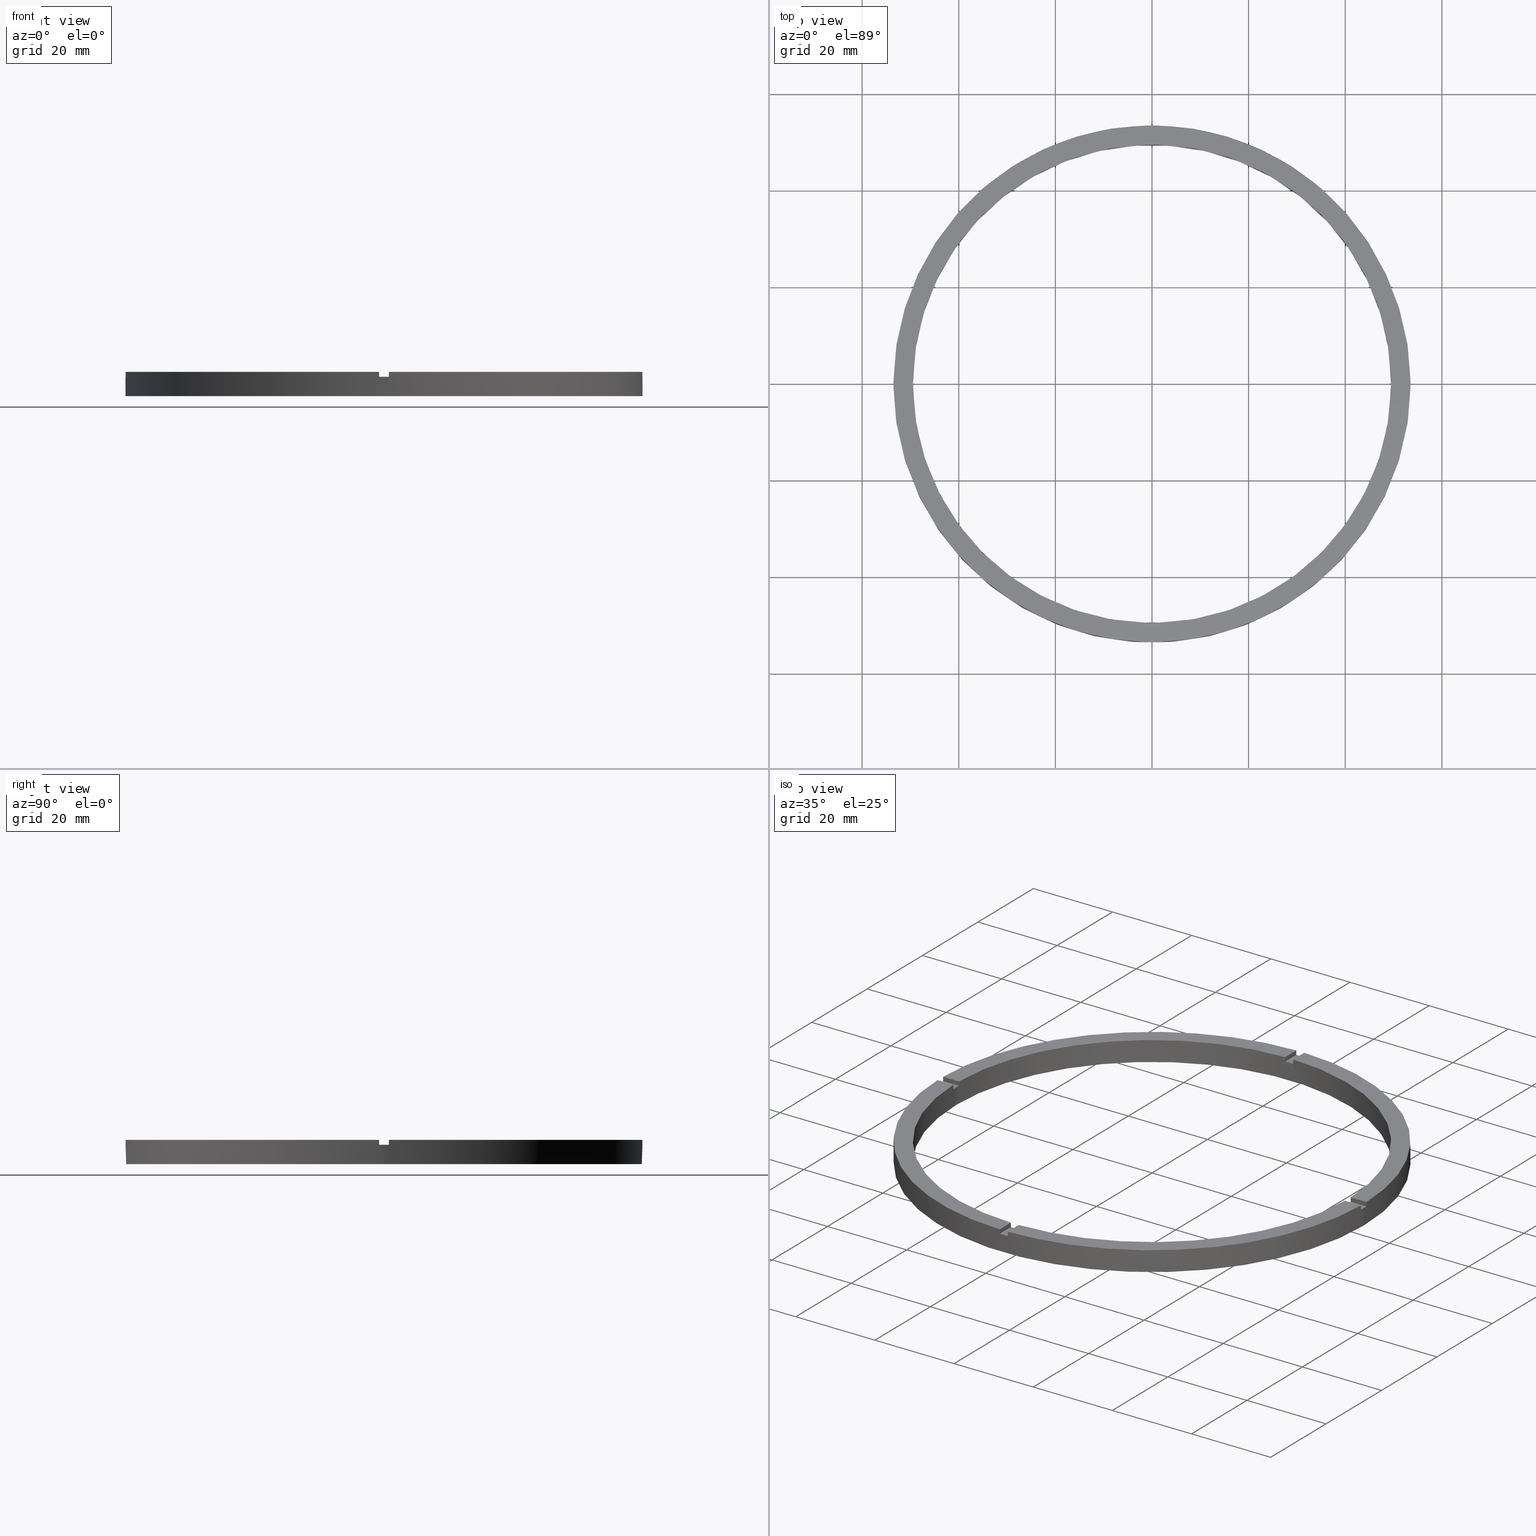
[diagram: canonical four-view strip — front | top / right | iso, engineering-drawing reading convention]
A machine part, canonical four-view strip (front | top / right | iso — engineering-drawing reading convention). The complete STEP part file that produces these views, byte-faithful:
ISO-10303-21;
HEADER;
FILE_DESCRIPTION (( 'STEP AP203' ),
    '1' );
FILE_NAME ('514218.step',
    '2024-12-26T02:49:11',
    ( 'MSI' ),
    ( '' ),
    'SwSTEP 2.0',
    'SolidWorks 2020',
    '' );
FILE_SCHEMA (( 'CONFIG_CONTROL_DESIGN' ));
ENDSEC;

DATA;
#1 = PLANE ( 'NONE',  #80 ) ;
#2 = AXIS2_PLACEMENT_3D ( 'NONE', #96, #578, #4 ) ;
#3 = PLANE ( 'NONE',  #149 ) ;
#4 = DIRECTION ( 'NONE',  ( 1.000000000000000000, 0.000000000000000000, -0.000000000000000000 ) ) ;
#5 = CARTESIAN_POINT ( 'NONE',  ( 0.000000000000000000, 0.000000000000000000, 5.000000000000000000 ) ) ;
#6 = DIRECTION ( 'NONE',  ( -1.000000000000000000, 0.000000000000000000, 0.000000000000000000 ) ) ;
#7 = AXIS2_PLACEMENT_3D ( 'NONE', #547, #768, #266 ) ;
#8 = CARTESIAN_POINT ( 'NONE',  ( 49.48989795907849043, 0.9999999999998452349, 5.000000000000000000 ) ) ;
#9 = ADVANCED_FACE ( 'NONE', ( #86 ), #779, .F. ) ;
#10 = DIRECTION ( 'NONE',  ( 1.000000000000000000, 0.000000000000000000, 0.000000000000000000 ) ) ;
#11 = CARTESIAN_POINT ( 'NONE',  ( -49.48989795907849043, -1.000000000000031974, 4.000000000000000000 ) ) ;
#12 = ADVANCED_FACE ( 'NONE', ( #93 ), #748, .T. ) ;
#13 = CARTESIAN_POINT ( 'NONE',  ( -1.000000000000155875, -53.49065338916696533, 5.000000000000000000 ) ) ;
#14 = AXIS2_PLACEMENT_3D ( 'NONE', #344, #509, #118 ) ;
#15 = CARTESIAN_POINT ( 'NONE',  ( -1.000000000000027311, 53.49065338916696533, 4.000000000000000000 ) ) ;
#16 = APPROVAL_ROLE ( '' ) ;
#17 = DIRECTION ( 'NONE',  ( 0.000000000000000000, 0.000000000000000000, 1.000000000000000000 ) ) ;
#18 = DIRECTION ( 'NONE',  ( 1.000000000000000000, 0.000000000000000000, 0.000000000000000000 ) ) ;
#19 = DIRECTION ( 'NONE',  ( -1.000000000000000000, -6.505213034913025371E-17, -0.000000000000000000 ) ) ;
#20 = CC_DESIGN_APPROVAL ( #723, ( #652 ) ) ;
#21 = DIRECTION ( 'NONE',  ( 1.000000000000000000, 0.000000000000000000, -0.000000000000000000 ) ) ;
#22 = EDGE_CURVE ( 'NONE', #754, #426, #338, .T. ) ;
#23 = EDGE_CURVE ( 'NONE', #132, #233, #332, .T. ) ;
#24 = AXIS2_PLACEMENT_3D ( 'NONE', #364, #6, #428 ) ;
#25 =( NAMED_UNIT ( * ) PLANE_ANGLE_UNIT ( ) SI_UNIT ( $, .RADIAN. ) );
#26 = EDGE_CURVE ( 'NONE', #471, #236, #337, .T. ) ;
#27 = CARTESIAN_POINT ( 'NONE',  ( 0.9999999999998436806, -49.48989795907849043, 5.000000000000000000 ) ) ;
#28 = DIRECTION ( 'NONE',  ( 1.000000000000000000, 0.000000000000000000, 0.000000000000000000 ) ) ;
#29 = DATE_AND_TIME ( #574, #51 ) ;
#30 = AXIS2_PLACEMENT_3D ( 'NONE', #5, #204, #210 ) ;
#31 = PERSON_AND_ORGANIZATION ( #371, #427 ) ;
#32 = APPROVAL_DATE_TIME ( #556, #759 ) ;
#33 = PERSON_AND_ORGANIZATION ( #371, #427 ) ;
#34 = PLANE ( 'NONE',  #359 ) ;
#35 = CARTESIAN_POINT ( 'NONE',  ( 0.9999999999998427924, -43.50000000000017764, 4.000000000000000000 ) ) ;
#36 = APPROVAL_PERSON_ORGANIZATION ( #551, #723, #16 ) ;
#37 = EDGE_CURVE ( 'NONE', #699, #233, #94, .T. ) ;
#38 = CALENDAR_DATE ( 2024, 26, 12 ) ;
#39 = CARTESIAN_POINT ( 'NONE',  ( 49.48989795907849043, 0.9999999999998452349, 4.000000000000000000 ) ) ;
#40 = ORIENTED_EDGE ( 'NONE', *, *, #584, .T. ) ;
#41 = ADVANCED_FACE ( 'NONE', ( #596 ), #57, .T. ) ;
#42 = CARTESIAN_POINT ( 'NONE',  ( 43.49999999999999289, 0.9999999999998447908, 4.000000000000000000 ) ) ;
#43 = CALENDAR_DATE ( 2024, 26, 12 ) ;
#44 = DIRECTION ( 'NONE',  ( 1.000000000000000000, 0.000000000000000000, 0.000000000000000000 ) ) ;
#45 = COORDINATED_UNIVERSAL_TIME_OFFSET ( 8, 0, .AHEAD. ) ;
#46 = CARTESIAN_POINT ( 'NONE',  ( -53.49065338916696533, 0.9999999999999674705, 4.000000000000000000 ) ) ;
#47 = CARTESIAN_POINT ( 'NONE',  ( 0.000000000000000000, 0.000000000000000000, 0.000000000000000000 ) ) ;
#48 = ORIENTED_EDGE ( 'NONE', *, *, #307, .T. ) ;
#49 = LOCAL_TIME ( 10, 49, 11.00000000000000000, #301 ) ;
#50 = CARTESIAN_POINT ( 'NONE',  ( 0.000000000000000000, 0.000000000000000000, 4.000000000000000000 ) ) ;
#51 = LOCAL_TIME ( 10, 49, 11.00000000000000000, #409 ) ;
#52 = EDGE_CURVE ( 'NONE', #361, #435, #351, .T. ) ;
#53 = CARTESIAN_POINT ( 'NONE',  ( 43.49999999999999289, 0.9999999999998447908, 5.000000000000000000 ) ) ;
#54 = PERSON_AND_ORGANIZATION ( #371, #427 ) ;
#55 = DIRECTION ( 'NONE',  ( 0.000000000000000000, 0.000000000000000000, 1.000000000000000000 ) ) ;
#56 = PRODUCT_DEFINITION_SHAPE ( 'NONE', 'NONE',  #535 ) ;
#57 = PLANE ( 'NONE',  #293 ) ;
#58 = CARTESIAN_POINT ( 'NONE',  ( 43.49999999999999289, 0.9999999999998447908, 4.000000000000000000 ) ) ;
#59 = EDGE_CURVE ( 'NONE', #361, #664, #79, .T. ) ;
#60 = DIRECTION ( 'NONE',  ( -0.000000000000000000, -1.000000000000000000, -0.000000000000000000 ) ) ;
#61 = CARTESIAN_POINT ( 'NONE',  ( 0.9999999999999726885, 43.50000000000000000, 4.000000000000000000 ) ) ;
#62 = EDGE_CURVE ( 'NONE', #467, #426, #91, .T. ) ;
#63 = DIRECTION ( 'NONE',  ( -1.000000000000000000, 0.000000000000000000, 0.000000000000000000 ) ) ;
#64 = CARTESIAN_POINT ( 'NONE',  ( 49.50000000000000711, 6.062001655779399300E-15, 4.000000000000000000 ) ) ;
#65 = PLANE ( 'NONE',  #557 ) ;
#66 = AXIS2_PLACEMENT_3D ( 'NONE', #770, #501, #263 ) ;
#67 = DIRECTION ( 'NONE',  ( -6.505213034913025371E-17, 1.000000000000000000, 0.000000000000000000 ) ) ;
#68 = DESIGN_CONTEXT ( 'detailed design', #623, 'design' ) ;
#69 = APPLICATION_CONTEXT ( 'configuration controlled 3d designs of mechanical parts and assemblies' ) ;
#70 = APPROVAL_ROLE ( '' ) ;
#71 = VECTOR ( 'NONE', #320, 1000.000000000000000 ) ;
#72 = LINE ( 'NONE', #639, #607 ) ;
#73 = AXIS2_PLACEMENT_3D ( 'NONE', #543, #761, #767 ) ;
#74 = FACE_OUTER_BOUND ( 'NONE', #162, .T. ) ;
#75 = CARTESIAN_POINT ( 'NONE',  ( -53.50000000000000000, 0.000000000000000000, 5.000000000000000000 ) ) ;
#76 = FACE_OUTER_BOUND ( 'NONE', #168, .T. ) ;
#77 = LINE ( 'NONE', #460, #603 ) ;
#78 = EDGE_LOOP ( 'NONE', ( #164, #410, #140, #735, #465, #755, #174, #472, #219, #694, #455, #750 ) ) ;
#79 = CIRCLE ( 'NONE', #486, 49.50000000000000711 ) ;
#80 = AXIS2_PLACEMENT_3D ( 'NONE', #496, #269, #531 ) ;
#81 = CARTESIAN_POINT ( 'NONE',  ( -49.48989795907849043, 0.9999999999999681366, 4.000000000000000000 ) ) ;
#82 = VECTOR ( 'NONE', #342, 1000.000000000000000 ) ;
#83 = CIRCLE ( 'NONE', #368, 53.50000000000000000 ) ;
#84 = CC_DESIGN_DATE_AND_TIME_ASSIGNMENT ( #569, #319, ( #652 ) ) ;
#85 = LINE ( 'NONE', #513, #333 ) ;
#86 = FACE_OUTER_BOUND ( 'NONE', #202, .T. ) ;
#87 = EDGE_CURVE ( 'NONE', #200, #754, #625, .T. ) ;
#88 = CIRCLE ( 'NONE', #242, 53.50000000000000000 ) ;
#89 = FACE_OUTER_BOUND ( 'NONE', #485, .T. ) ;
#90 = EDGE_CURVE ( 'NONE', #177, #715, #616, .T. ) ;
#91 = CIRCLE ( 'NONE', #420, 49.50000000000000711 ) ;
#92 = AXIS2_PLACEMENT_3D ( 'NONE', #577, #645, #739 ) ;
#93 = FACE_OUTER_BOUND ( 'NONE', #711, .T. ) ;
#94 = LINE ( 'NONE', #350, #590 ) ;
#95 = LINE ( 'NONE', #681, #101 ) ;
#96 = CARTESIAN_POINT ( 'NONE',  ( 0.000000000000000000, 0.000000000000000000, 5.000000000000000000 ) ) ;
#97 = LINE ( 'NONE', #27, #71 ) ;
#98 = VECTOR ( 'NONE', #326, 1000.000000000000000 ) ;
#99 = LINE ( 'NONE', #245, #612 ) ;
#100 = CARTESIAN_POINT ( 'NONE',  ( 0.000000000000000000, 0.000000000000000000, 5.000000000000000000 ) ) ;
#101 = VECTOR ( 'NONE', #605, 1000.000000000000000 ) ;
#102 = CIRCLE ( 'NONE', #431, 49.50000000000000711 ) ;
#103 = LINE ( 'NONE', #42, #642 ) ;
#104 = VECTOR ( 'NONE', #567, 1000.000000000000000 ) ;
#105 = DIRECTION ( 'NONE',  ( -0.000000000000000000, -0.000000000000000000, -1.000000000000000000 ) ) ;
#106 =( GEOMETRIC_REPRESENTATION_CONTEXT ( 3 ) GLOBAL_UNCERTAINTY_ASSIGNED_CONTEXT ( ( #688 ) ) GLOBAL_UNIT_ASSIGNED_CONTEXT ( ( #231, #25, #703 ) ) REPRESENTATION_CONTEXT ( 'NONE', 'WORKASPACE' ) );
#107 = FACE_OUTER_BOUND ( 'NONE', #176, .T. ) ;
#108 = DIRECTION ( 'NONE',  ( 0.000000000000000000, 0.000000000000000000, 1.000000000000000000 ) ) ;
#109 = CIRCLE ( 'NONE', #66, 49.50000000000000711 ) ;
#110 = CARTESIAN_POINT ( 'NONE',  ( 53.49065338916696533, -1.000000000000154543, 5.000000000000000000 ) ) ;
#111 = LINE ( 'NONE', #279, #658 ) ;
#112 = CARTESIAN_POINT ( 'NONE',  ( -1.000000000000157208, -43.50000000000017764, 4.000000000000000000 ) ) ;
#113 = VECTOR ( 'NONE', #19, 1000.000000000000000 ) ;
#114 = DIRECTION ( 'NONE',  ( 1.000000000000000000, 0.000000000000000000, 0.000000000000000000 ) ) ;
#115 = LINE ( 'NONE', #537, #395 ) ;
#116 = CC_DESIGN_SECURITY_CLASSIFICATION ( #652, ( #268 ) ) ;
#117 = LINE ( 'NONE', #521, #124 ) ;
#118 = DIRECTION ( 'NONE',  ( 1.000000000000000000, 0.000000000000000000, 0.000000000000000000 ) ) ;
#119 = CIRCLE ( 'NONE', #579, 53.50000000000000000 ) ;
#120 = AXIS2_PLACEMENT_3D ( 'NONE', #195, #674, #10 ) ;
#121 = CC_DESIGN_DATE_AND_TIME_ASSIGNMENT ( #308, #272, ( #535 ) ) ;
#122 = EDGE_CURVE ( 'NONE', #239, #177, #343, .T. ) ;
#123 = FACE_OUTER_BOUND ( 'NONE', #772, .T. ) ;
#124 = VECTOR ( 'NONE', #528, 1000.000000000000000 ) ;
#125 = CIRCLE ( 'NONE', #545, 53.50000000000000000 ) ;
#126 = EDGE_CURVE ( 'NONE', #166, #177, #335, .T. ) ;
#127 = VECTOR ( 'NONE', #742, 1000.000000000000000 ) ;
#128 = AXIS2_PLACEMENT_3D ( 'NONE', #47, #581, #656 ) ;
#129 = VECTOR ( 'NONE', #134, 1000.000000000000000 ) ;
#130 = ORIENTED_EDGE ( 'NONE', *, *, #225, .F. ) ;
#131 = CARTESIAN_POINT ( 'NONE',  ( 0.000000000000000000, 0.000000000000000000, 4.000000000000000000 ) ) ;
#132 = VERTEX_POINT ( 'NONE', #64 ) ;
#133 = CIRCLE ( 'NONE', #443, 53.50000000000000000 ) ;
#134 = DIRECTION ( 'NONE',  ( 1.000000000000000000, 1.951563910473907735E-16, -0.000000000000000000 ) ) ;
#135 = ORIENTED_EDGE ( 'NONE', *, *, #22, .T. ) ;
#136 = CIRCLE ( 'NONE', #128, 53.50000000000000000 ) ;
#137 = EDGE_CURVE ( 'NONE', #462, #689, #347, .T. ) ;
#138 = VERTEX_POINT ( 'NONE', #261 ) ;
#139 = VECTOR ( 'NONE', #516, 1000.000000000000000 ) ;
#140 = ORIENTED_EDGE ( 'NONE', *, *, #440, .T. ) ;
#141 = FACE_OUTER_BOUND ( 'NONE', #156, .T. ) ;
#142 = CARTESIAN_POINT ( 'NONE',  ( 0.000000000000000000, 0.000000000000000000, 5.000000000000000000 ) ) ;
#143 = ORIENTED_EDGE ( 'NONE', *, *, #62, .T. ) ;
#144 = FACE_OUTER_BOUND ( 'NONE', #78, .T. ) ;
#145 = CARTESIAN_POINT ( 'NONE',  ( -1.000000000000027311, 53.49065338916696533, 5.000000000000000000 ) ) ;
#146 = ORIENTED_EDGE ( 'NONE', *, *, #621, .T. ) ;
#147 = SECURITY_CLASSIFICATION_LEVEL ( 'unclassified' ) ;
#148 = APPROVAL_PERSON_ORGANIZATION ( #161, #541, #228 ) ;
#149 = AXIS2_PLACEMENT_3D ( 'NONE', #112, #303, #286 ) ;
#150 = ORIENTED_EDGE ( 'NONE', *, *, #684, .F. ) ;
#151 = VECTOR ( 'NONE', #773, 1000.000000000000000 ) ;
#152 = ORIENTED_EDGE ( 'NONE', *, *, #584, .F. ) ;
#153 = ORIENTED_EDGE ( 'NONE', *, *, #225, .T. ) ;
#154 = VERTEX_POINT ( 'NONE', #682 ) ;
#155 = DIRECTION ( 'NONE',  ( 0.000000000000000000, 0.000000000000000000, 1.000000000000000000 ) ) ;
#156 = EDGE_LOOP ( 'NONE', ( #714, #188, #741, #659 ) ) ;
#157 = ORIENTED_EDGE ( 'NONE', *, *, #126, .F. ) ;
#158 = DIRECTION ( 'NONE',  ( 1.000000000000000000, 0.000000000000000000, 0.000000000000000000 ) ) ;
#159 = ORIENTED_EDGE ( 'NONE', *, *, #62, .F. ) ;
#160 = ORIENTED_EDGE ( 'NONE', *, *, #631, .F. ) ;
#161 = PERSON_AND_ORGANIZATION ( #371, #427 ) ;
#162 = EDGE_LOOP ( 'NONE', ( #722, #679, #489, #701, #721, #403 ) ) ;
#163 = DIRECTION ( 'NONE',  ( 0.000000000000000000, 0.000000000000000000, 1.000000000000000000 ) ) ;
#164 = ORIENTED_EDGE ( 'NONE', *, *, #277, .F. ) ;
#165 = CLOSED_SHELL ( 'NONE', ( #346, #764, #280, #252, #12, #356, #257, #672, #302, #744, #9, #185, #650, #512, #594, #604, #586, #582, #506, #289, #41 ) ) ;
#166 = VERTEX_POINT ( 'NONE', #306 ) ;
#167 = AXIS2_PLACEMENT_3D ( 'NONE', #447, #505, #539 ) ;
#168 = EDGE_LOOP ( 'NONE', ( #220, #752 ) ) ;
#169 = CARTESIAN_POINT ( 'NONE',  ( -53.49065338916696533, -1.000000000000032641, 4.000000000000000000 ) ) ;
#170 = VERTEX_POINT ( 'NONE', #13 ) ;
#171 = ORIENTED_EDGE ( 'NONE', *, *, #526, .F. ) ;
#172 = VERTEX_POINT ( 'NONE', #367 ) ;
#173 = ORIENTED_EDGE ( 'NONE', *, *, #90, .T. ) ;
#174 = ORIENTED_EDGE ( 'NONE', *, *, #475, .T. ) ;
#175 = EDGE_LOOP ( 'NONE', ( #671, #468, #477, #294, #300, #209, #572, #438, #731, #738, #445, #418 ) ) ;
#176 = EDGE_LOOP ( 'NONE', ( #130, #206, #396, #676 ) ) ;
#177 = VERTEX_POINT ( 'NONE', #458 ) ;
#178 = ORIENTED_EDGE ( 'NONE', *, *, #527, .T. ) ;
#179 = EDGE_CURVE ( 'NONE', #765, #232, #85, .T. ) ;
#180 = VERTEX_POINT ( 'NONE', #218 ) ;
#181 = EDGE_CURVE ( 'NONE', #361, #678, #95, .T. ) ;
#182 = ORIENTED_EDGE ( 'NONE', *, *, #222, .F. ) ;
#183 = DIRECTION ( 'NONE',  ( 0.000000000000000000, 0.000000000000000000, 1.000000000000000000 ) ) ;
#184 = ORIENTED_EDGE ( 'NONE', *, *, #276, .F. ) ;
#185 = ADVANCED_FACE ( 'NONE', ( #74 ), #260, .T. ) ;
#186 = ORIENTED_EDGE ( 'NONE', *, *, #90, .F. ) ;
#187 = VERTEX_POINT ( 'NONE', #511 ) ;
#188 = ORIENTED_EDGE ( 'NONE', *, *, #553, .T. ) ;
#189 = DIRECTION ( 'NONE',  ( 1.000000000000000000, 0.000000000000000000, -0.000000000000000000 ) ) ;
#190 = ORIENTED_EDGE ( 'NONE', *, *, #37, .T. ) ;
#191 = DIRECTION ( 'NONE',  ( 1.000000000000000000, 0.000000000000000000, 0.000000000000000000 ) ) ;
#192 = DIRECTION ( 'NONE',  ( 1.301042606982605074E-16, -1.000000000000000000, 0.000000000000000000 ) ) ;
#193 = ORIENTED_EDGE ( 'NONE', *, *, #126, .T. ) ;
#194 = ORIENTED_EDGE ( 'NONE', *, *, #729, .T. ) ;
#195 = CARTESIAN_POINT ( 'NONE',  ( 0.000000000000000000, 0.000000000000000000, 4.000000000000000000 ) ) ;
#196 = ORIENTED_EDGE ( 'NONE', *, *, #382, .F. ) ;
#197 = ORIENTED_EDGE ( 'NONE', *, *, #322, .T. ) ;
#198 = EDGE_CURVE ( 'NONE', #500, #172, #340, .T. ) ;
#199 = DIRECTION ( 'NONE',  ( 0.000000000000000000, 0.000000000000000000, 1.000000000000000000 ) ) ;
#200 = VERTEX_POINT ( 'NONE', #646 ) ;
#201 = EDGE_CURVE ( 'NONE', #200, #715, #88, .T. ) ;
#202 = EDGE_LOOP ( 'NONE', ( #491, #223, #705, #412 ) ) ;
#203 = EDGE_LOOP ( 'NONE', ( #484, #719, #716, #160 ) ) ;
#204 = DIRECTION ( 'NONE',  ( 0.000000000000000000, 0.000000000000000000, 1.000000000000000000 ) ) ;
#205 = CARTESIAN_POINT ( 'NONE',  ( 0.000000000000000000, 0.000000000000000000, 5.000000000000000000 ) ) ;
#206 = ORIENTED_EDGE ( 'NONE', *, *, #334, .F. ) ;
#207 = CARTESIAN_POINT ( 'NONE',  ( 0.000000000000000000, 0.000000000000000000, 4.000000000000000000 ) ) ;
#208 = EDGE_LOOP ( 'NONE', ( #407, #135, #159, #212 ) ) ;
#209 = ORIENTED_EDGE ( 'NONE', *, *, #382, .T. ) ;
#210 = DIRECTION ( 'NONE',  ( 1.000000000000000000, 0.000000000000000000, 0.000000000000000000 ) ) ;
#211 = ORIENTED_EDGE ( 'NONE', *, *, #201, .T. ) ;
#212 = ORIENTED_EDGE ( 'NONE', *, *, #668, .T. ) ;
#213 = CARTESIAN_POINT ( 'NONE',  ( -53.50000000000000000, 0.000000000000000000, 4.000000000000000000 ) ) ;
#214 = CC_DESIGN_PERSON_AND_ORGANIZATION_ASSIGNMENT ( #31, #696, ( #268 ) ) ;
#215 = DIRECTION ( 'NONE',  ( 1.000000000000000000, 0.000000000000000000, -0.000000000000000000 ) ) ;
#216 = VERTEX_POINT ( 'NONE', #589 ) ;
#217 = DIRECTION ( 'NONE',  ( 1.000000000000000000, 0.000000000000000000, 0.000000000000000000 ) ) ;
#218 = CARTESIAN_POINT ( 'NONE',  ( 0.9999999999999726885, 53.49065338916696533, 4.000000000000000000 ) ) ;
#219 = ORIENTED_EDGE ( 'NONE', *, *, #550, .T. ) ;
#220 = ORIENTED_EDGE ( 'NONE', *, *, #510, .F. ) ;
#221 = CARTESIAN_POINT ( 'NONE',  ( 0.9999999999999726885, 53.49065338916696533, 5.000000000000000000 ) ) ;
#222 = EDGE_CURVE ( 'NONE', #467, #187, #600, .T. ) ;
#223 = ORIENTED_EDGE ( 'NONE', *, *, #52, .T. ) ;
#224 = DIRECTION ( 'NONE',  ( -0.000000000000000000, -0.000000000000000000, -1.000000000000000000 ) ) ;
#225 = EDGE_CURVE ( 'NONE', #187, #170, #357, .T. ) ;
#226 = MANIFOLD_SOLID_BREP ( '�г�-����1', #165 ) ;
#227 = APPLICATION_PROTOCOL_DEFINITION ( 'international standard', 'config_control_design', 1994, #69 ) ;
#228 = APPROVAL_ROLE ( '' ) ;
#229 = VERTEX_POINT ( 'NONE', #348 ) ;
#230 = CARTESIAN_POINT ( 'NONE',  ( -49.48989795907849043, -1.000000000000031974, 5.000000000000000000 ) ) ;
#231 =( LENGTH_UNIT ( ) NAMED_UNIT ( * ) SI_UNIT ( .MILLI., .METRE. ) );
#232 = VERTEX_POINT ( 'NONE', #746 ) ;
#233 = VERTEX_POINT ( 'NONE', #39 ) ;
#234 = EDGE_CURVE ( 'NONE', #609, #433, #99, .T. ) ;
#235 = CARTESIAN_POINT ( 'NONE',  ( 53.49065338916696533, -1.000000000000154543, 4.000000000000000000 ) ) ;
#236 = VERTEX_POINT ( 'NONE', #284 ) ;
#237 = CC_DESIGN_PERSON_AND_ORGANIZATION_ASSIGNMENT ( #33, #372, ( #535 ) ) ;
#238 = DIRECTION ( 'NONE',  ( 0.000000000000000000, 1.000000000000000000, 0.000000000000000000 ) ) ;
#239 = VERTEX_POINT ( 'NONE', #542 ) ;
#240 = CARTESIAN_POINT ( 'NONE',  ( 0.9999999999999726885, 53.49065338916696533, 5.000000000000000000 ) ) ;
#241 = DIRECTION ( 'NONE',  ( -0.000000000000000000, -0.000000000000000000, -1.000000000000000000 ) ) ;
#242 = AXIS2_PLACEMENT_3D ( 'NONE', #100, #183, #44 ) ;
#243 = DIRECTION ( 'NONE',  ( 0.000000000000000000, 0.000000000000000000, 1.000000000000000000 ) ) ;
#244 = CARTESIAN_POINT ( 'NONE',  ( -1.000000000000155875, -53.49065338916696533, 4.000000000000000000 ) ) ;
#245 = CARTESIAN_POINT ( 'NONE',  ( -1.000000000000027311, 43.50000000000000000, 5.000000000000000000 ) ) ;
#246 = CARTESIAN_POINT ( 'NONE',  ( -49.48989795907849043, 0.9999999999999681366, 5.000000000000000000 ) ) ;
#247 = AXIS2_PLACEMENT_3D ( 'NONE', #205, #339, #191 ) ;
#248 = CARTESIAN_POINT ( 'NONE',  ( 0.000000000000000000, 0.000000000000000000, 4.000000000000000000 ) ) ;
#249 = DIRECTION ( 'NONE',  ( 1.000000000000000000, 0.000000000000000000, -0.000000000000000000 ) ) ;
#250 = AXIS2_PLACEMENT_3D ( 'NONE', #287, #55, #282 ) ;
#251 = PLANE ( 'NONE',  #762 ) ;
#252 = ADVANCED_FACE ( 'NONE', ( #597 ), #430, .T. ) ;
#253 = CARTESIAN_POINT ( 'NONE',  ( -43.50000000000018474, 0.9999999999999694689, 4.000000000000000000 ) ) ;
#254 = AXIS2_PLACEMENT_3D ( 'NONE', #781, #778, #189 ) ;
#255 = DIRECTION ( 'NONE',  ( 0.000000000000000000, 0.000000000000000000, 1.000000000000000000 ) ) ;
#256 = DIRECTION ( 'NONE',  ( 0.000000000000000000, -0.000000000000000000, 1.000000000000000000 ) ) ;
#257 = ADVANCED_FACE ( 'NONE', ( #76, #330 ), #34, .F. ) ;
#258 = CARTESIAN_POINT ( 'NONE',  ( -1.000000000000157208, -43.50000000000017764, 4.000000000000000000 ) ) ;
#259 = CARTESIAN_POINT ( 'NONE',  ( 53.50000000000000000, 6.551860375438339893E-15, 0.000000000000000000 ) ) ;
#260 = PLANE ( 'NONE',  #540 ) ;
#261 = CARTESIAN_POINT ( 'NONE',  ( 0.9999999999999726885, 49.48989795907849043, 5.000000000000000000 ) ) ;
#262 = CARTESIAN_POINT ( 'NONE',  ( 0.000000000000000000, 0.000000000000000000, 5.000000000000000000 ) ) ;
#263 = DIRECTION ( 'NONE',  ( 1.000000000000000000, 0.000000000000000000, 0.000000000000000000 ) ) ;
#264 = CARTESIAN_POINT ( 'NONE',  ( 0.000000000000000000, 0.000000000000000000, 5.000000000000000000 ) ) ;
#265 = DIRECTION ( 'NONE',  ( -1.301042606982605074E-16, 1.000000000000000000, 0.000000000000000000 ) ) ;
#266 = DIRECTION ( 'NONE',  ( 1.000000000000000000, 0.000000000000000000, 0.000000000000000000 ) ) ;
#267 = PERSON_AND_ORGANIZATION_ROLE ( 'classification_officer' ) ;
#268 = PRODUCT_DEFINITION_FORMATION_WITH_SPECIFIED_SOURCE ( '�κ�', '', #602, .NOT_KNOWN. ) ;
#269 = DIRECTION ( 'NONE',  ( 6.505213034913025371E-17, -1.000000000000000000, 0.000000000000000000 ) ) ;
#270 = DIRECTION ( 'NONE',  ( 1.000000000000000000, 1.951563910473907735E-16, -0.000000000000000000 ) ) ;
#271 = CARTESIAN_POINT ( 'NONE',  ( 43.49999999999999289, -1.000000000000155209, 4.000000000000000000 ) ) ;
#272 = DATE_TIME_ROLE ( 'creation_date' ) ;
#273 = AXIS2_PLACEMENT_3D ( 'NONE', #331, #524, #28 ) ;
#274 = CARTESIAN_POINT ( 'NONE',  ( -1.000000000000027311, 49.48989795907849043, 5.000000000000000000 ) ) ;
#275 = EDGE_CURVE ( 'NONE', #435, #229, #363, .T. ) ;
#276 = EDGE_CURVE ( 'NONE', #433, #435, #353, .T. ) ;
#277 = EDGE_CURVE ( 'NONE', #236, #483, #72, .T. ) ;
#278 = AXIS2_PLACEMENT_3D ( 'NONE', #313, #760, #63 ) ;
#279 = CARTESIAN_POINT ( 'NONE',  ( -49.50000000000000711, 0.000000000000000000, 5.000000000000000000 ) ) ;
#280 = ADVANCED_FACE ( 'NONE', ( #89 ), #734, .T. ) ;
#281 = CARTESIAN_POINT ( 'NONE',  ( 49.50000000000000711, 6.062001655779399300E-15, 5.000000000000000000 ) ) ;
#282 = DIRECTION ( 'NONE',  ( 1.000000000000000000, 0.000000000000000000, -0.000000000000000000 ) ) ;
#283 = DIRECTION ( 'NONE',  ( 1.000000000000000000, 0.000000000000000000, 0.000000000000000000 ) ) ;
#284 = CARTESIAN_POINT ( 'NONE',  ( 53.50000000000000000, 6.551860375438339893E-15, 4.000000000000000000 ) ) ;
#285 = DIRECTION ( 'NONE',  ( 0.000000000000000000, 0.000000000000000000, 1.000000000000000000 ) ) ;
#286 = DIRECTION ( 'NONE',  ( 1.301042606982605074E-16, -1.000000000000000000, 0.000000000000000000 ) ) ;
#287 = CARTESIAN_POINT ( 'NONE',  ( 0.000000000000000000, 0.000000000000000000, 5.000000000000000000 ) ) ;
#288 = APPROVAL_DATE_TIME ( #29, #541 ) ;
#289 = ADVANCED_FACE ( 'NONE', ( #345 ), #700, .F. ) ;
#290 = CARTESIAN_POINT ( 'NONE',  ( 0.9999999999999726885, 49.48989795907849043, 4.000000000000000000 ) ) ;
#291 = PRODUCT_RELATED_PRODUCT_CATEGORY ( 'detail', '', ( #602 ) ) ;
#292 = DIRECTION ( 'NONE',  ( -0.000000000000000000, -0.000000000000000000, -1.000000000000000000 ) ) ;
#293 = AXIS2_PLACEMENT_3D ( 'NONE', #666, #256, #249 ) ;
#294 = ORIENTED_EDGE ( 'NONE', *, *, #733, .T. ) ;
#295 = EDGE_CURVE ( 'NONE', #138, #558, #626, .T. ) ;
#296 = PERSON_AND_ORGANIZATION ( #371, #427 ) ;
#297 = DIRECTION ( 'NONE',  ( 1.000000000000000000, 0.000000000000000000, -0.000000000000000000 ) ) ;
#298 = EDGE_CURVE ( 'NONE', #154, #462, #77, .T. ) ;
#299 = AXIS2_PLACEMENT_3D ( 'NONE', #608, #563, #18 ) ;
#300 = ORIENTED_EDGE ( 'NONE', *, *, #690, .F. ) ;
#301 = COORDINATED_UNIVERSAL_TIME_OFFSET ( 8, 0, .AHEAD. ) ;
#302 = ADVANCED_FACE ( 'NONE', ( #328 ), #349, .F. ) ;
#303 = DIRECTION ( 'NONE',  ( -1.000000000000000000, -1.301042606982605074E-16, 0.000000000000000000 ) ) ;
#304 = CARTESIAN_POINT ( 'NONE',  ( 0.000000000000000000, 0.000000000000000000, 4.000000000000000000 ) ) ;
#305 = ORIENTED_EDGE ( 'NONE', *, *, #321, .F. ) ;
#306 = CARTESIAN_POINT ( 'NONE',  ( 49.48989795907849043, -1.000000000000154765, 4.000000000000000000 ) ) ;
#307 = EDGE_CURVE ( 'NONE', #216, #691, #619, .T. ) ;
#308 = DATE_AND_TIME ( #43, #554 ) ;
#309 = APPROVAL_DATE_TIME ( #562, #723 ) ;
#310 = CALENDAR_DATE ( 2024, 26, 12 ) ;
#311 = DIRECTION ( 'NONE',  ( 0.000000000000000000, -0.000000000000000000, 1.000000000000000000 ) ) ;
#312 = EDGE_LOOP ( 'NONE', ( #429, #178, #152, #669, #654, #708, #706, #182, #143, #398, #685, #157 ) ) ;
#313 = CARTESIAN_POINT ( 'NONE',  ( 0.000000000000000000, 0.000000000000000000, 5.000000000000000000 ) ) ;
#314 = COORDINATED_UNIVERSAL_TIME_OFFSET ( 8, 0, .AHEAD. ) ;
#315 = ORIENTED_EDGE ( 'NONE', *, *, #234, .F. ) ;
#316 = APPROVAL_PERSON_ORGANIZATION ( #566, #759, #70 ) ;
#317 = DIRECTION ( 'NONE',  ( 0.000000000000000000, 0.000000000000000000, 1.000000000000000000 ) ) ;
#318 = CARTESIAN_POINT ( 'NONE',  ( -1.000000000000156319, -49.48989795907849043, 4.000000000000000000 ) ) ;
#319 = DATE_TIME_ROLE ( 'classification_date' ) ;
#320 = DIRECTION ( 'NONE',  ( -0.000000000000000000, -0.000000000000000000, -1.000000000000000000 ) ) ;
#321 = EDGE_CURVE ( 'NONE', #609, #229, #83, .T. ) ;
#322 = EDGE_CURVE ( 'NONE', #239, #426, #97, .T. ) ;
#323 = VECTOR ( 'NONE', #17, 1000.000000000000000 ) ;
#324 = CARTESIAN_POINT ( 'NONE',  ( 0.000000000000000000, 0.000000000000000000, 4.000000000000000000 ) ) ;
#325 = CIRCLE ( 'NONE', #299, 49.50000000000000711 ) ;
#326 = DIRECTION ( 'NONE',  ( -1.000000000000000000, -1.951563910473907735E-16, 0.000000000000000000 ) ) ;
#327 = AXIS2_PLACEMENT_3D ( 'NONE', #514, #620, #488 ) ;
#328 = FACE_OUTER_BOUND ( 'NONE', #175, .T. ) ;
#329 = DIRECTION ( 'NONE',  ( -1.951563910473907735E-16, 1.000000000000000000, 0.000000000000000000 ) ) ;
#330 = FACE_BOUND ( 'NONE', #400, .T. ) ;
#331 = CARTESIAN_POINT ( 'NONE',  ( 0.000000000000000000, 0.000000000000000000, 0.000000000000000000 ) ) ;
#332 = CIRCLE ( 'NONE', #120, 49.50000000000000711 ) ;
#333 = VECTOR ( 'NONE', #60, 1000.000000000000000 ) ;
#334 = EDGE_CURVE ( 'NONE', #462, #187, #325, .T. ) ;
#335 = LINE ( 'NONE', #546, #323 ) ;
#336 = DIRECTION ( 'NONE',  ( 1.000000000000000000, 0.000000000000000000, 0.000000000000000000 ) ) ;
#337 = CIRCLE ( 'NONE', #758, 53.50000000000000000 ) ;
#338 = LINE ( 'NONE', #35, #82 ) ;
#339 = DIRECTION ( 'NONE',  ( 0.000000000000000000, 0.000000000000000000, 1.000000000000000000 ) ) ;
#340 = LINE ( 'NONE', #757, #341 ) ;
#341 = VECTOR ( 'NONE', #292, 1000.000000000000000 ) ;
#342 = DIRECTION ( 'NONE',  ( -1.301042606982605074E-16, 1.000000000000000000, -0.000000000000000000 ) ) ;
#343 = CIRCLE ( 'NONE', #73, 49.50000000000000711 ) ;
#344 = CARTESIAN_POINT ( 'NONE',  ( 0.000000000000000000, 0.000000000000000000, 5.000000000000000000 ) ) ;
#345 = FACE_OUTER_BOUND ( 'NONE', #203, .T. ) ;
#346 = ADVANCED_FACE ( 'NONE', ( #592 ), #366, .F. ) ;
#347 = LINE ( 'NONE', #508, #611 ) ;
#348 = CARTESIAN_POINT ( 'NONE',  ( -53.49065338916696533, 0.9999999999999674705, 5.000000000000000000 ) ) ;
#349 = CYLINDRICAL_SURFACE ( 'NONE', #327, 49.50000000000000711 ) ;
#350 = CARTESIAN_POINT ( 'NONE',  ( 49.48989795907849043, 0.9999999999998452349, 5.000000000000000000 ) ) ;
#351 = LINE ( 'NONE', #246, #599 ) ;
#352 = PLANE ( 'NONE',  #167 ) ;
#353 = CIRCLE ( 'NONE', #726, 49.50000000000000711 ) ;
#354 = ORIENTED_EDGE ( 'NONE', *, *, #631, .T. ) ;
#355 = CARTESIAN_POINT ( 'NONE',  ( 0.000000000000000000, 0.000000000000000000, 5.000000000000000000 ) ) ;
#356 = ADVANCED_FACE ( 'NONE', ( #107 ), #65, .T. ) ;
#357 = LINE ( 'NONE', #665, #591 ) ;
#358 = DIRECTION ( 'NONE',  ( 1.000000000000000000, 0.000000000000000000, 0.000000000000000000 ) ) ;
#359 = AXIS2_PLACEMENT_3D ( 'NONE', #437, #255, #297 ) ;
#360 = CC_DESIGN_APPROVAL ( #759, ( #268 ) ) ;
#361 = VERTEX_POINT ( 'NONE', #81 ) ;
#362 = DIRECTION ( 'NONE',  ( -0.000000000000000000, 0.000000000000000000, 1.000000000000000000 ) ) ;
#363 = LINE ( 'NONE', #536, #98 ) ;
#364 = CARTESIAN_POINT ( 'NONE',  ( -1.000000000000027311, 43.50000000000000000, 4.000000000000000000 ) ) ;
#365 = DIRECTION ( 'NONE',  ( 0.000000000000000000, 0.000000000000000000, 1.000000000000000000 ) ) ;
#366 = CYLINDRICAL_SURFACE ( 'NONE', #480, 49.50000000000000711 ) ;
#367 = CARTESIAN_POINT ( 'NONE',  ( 53.49065338916697243, 0.9999999999998454570, 4.000000000000000000 ) ) ;
#368 = AXIS2_PLACEMENT_3D ( 'NONE', #262, #155, #725 ) ;
#369 = FACE_OUTER_BOUND ( 'NONE', #439, .T. ) ;
#370 = DIRECTION ( 'NONE',  ( -1.000000000000000000, -6.505213034913025371E-17, 0.000000000000000000 ) ) ;
#371 = PERSON ( 'δָ��', 'δָ��', 'δָ��', ('δָ��'), ('δָ��'), ('δָ��') ) ;
#372 = PERSON_AND_ORGANIZATION_ROLE ( 'creator' ) ;
#373 = CIRCLE ( 'NONE', #493, 53.50000000000000000 ) ;
#374 = LINE ( 'NONE', #274, #104 ) ;
#375 = FACE_OUTER_BOUND ( 'NONE', #724, .T. ) ;
#376 = AXIS2_PLACEMENT_3D ( 'NONE', #780, #522, #215 ) ;
#377 = DIRECTION ( 'NONE',  ( -0.000000000000000000, -0.000000000000000000, -1.000000000000000000 ) ) ;
#378 = VECTOR ( 'NONE', #379, 1000.000000000000000 ) ;
#379 = DIRECTION ( 'NONE',  ( 0.000000000000000000, 0.000000000000000000, 1.000000000000000000 ) ) ;
#380 = LINE ( 'NONE', #221, #630 ) ;
#381 = VECTOR ( 'NONE', #105, 1000.000000000000000 ) ;
#382 = EDGE_CURVE ( 'NONE', #657, #232, #102, .T. ) ;
#383 = VECTOR ( 'NONE', #238, 1000.000000000000000 ) ;
#384 = AXIS2_PLACEMENT_3D ( 'NONE', #571, #481, #677 ) ;
#385 = DIRECTION ( 'NONE',  ( 0.000000000000000000, 0.000000000000000000, 1.000000000000000000 ) ) ;
#386 = FACE_OUTER_BOUND ( 'NONE', #492, .T. ) ;
#387 = APPROVAL_STATUS ( 'not_yet_approved' ) ;
#388 = CIRCLE ( 'NONE', #507, 49.50000000000000711 ) ;
#389 = FACE_OUTER_BOUND ( 'NONE', #732, .T. ) ;
#390 = LINE ( 'NONE', #745, #628 ) ;
#391 = PLANE ( 'NONE',  #384 ) ;
#392 = DIRECTION ( 'NONE',  ( -1.000000000000000000, 0.000000000000000000, 0.000000000000000000 ) ) ;
#393 = LINE ( 'NONE', #776, #127 ) ;
#394 = APPLICATION_PROTOCOL_DEFINITION ( 'international standard', 'config_control_design', 1994, #623 ) ;
#395 = VECTOR ( 'NONE', #614, 1000.000000000000000 ) ;
#396 = ORIENTED_EDGE ( 'NONE', *, *, #298, .F. ) ;
#397 = FACE_OUTER_BOUND ( 'NONE', #442, .T. ) ;
#398 = ORIENTED_EDGE ( 'NONE', *, *, #322, .F. ) ;
#399 = LINE ( 'NONE', #718, #139 ) ;
#400 = EDGE_LOOP ( 'NONE', ( #40, #48 ) ) ;
#401 = CARTESIAN_POINT ( 'NONE',  ( 0.9999999999998436806, -49.48989795907849043, 4.000000000000000000 ) ) ;
#402 = VECTOR ( 'NONE', #199, 1000.000000000000000 ) ;
#403 = ORIENTED_EDGE ( 'NONE', *, *, #181, .T. ) ;
#404 = CIRCLE ( 'NONE', #92, 53.50000000000000000 ) ;
#405 = ORIENTED_EDGE ( 'NONE', *, *, #617, .F. ) ;
#406 = CIRCLE ( 'NONE', #273, 49.50000000000000711 ) ;
#407 = ORIENTED_EDGE ( 'NONE', *, *, #670, .T. ) ;
#408 = DIRECTION ( 'NONE',  ( -0.000000000000000000, -0.000000000000000000, -1.000000000000000000 ) ) ;
#409 = COORDINATED_UNIVERSAL_TIME_OFFSET ( 8, 0, .AHEAD. ) ;
#410 = ORIENTED_EDGE ( 'NONE', *, *, #26, .F. ) ;
#411 = ORIENTED_EDGE ( 'NONE', *, *, #277, .T. ) ;
#412 = ORIENTED_EDGE ( 'NONE', *, *, #487, .F. ) ;
#413 = PERSON_AND_ORGANIZATION ( #371, #427 ) ;
#414 = ORIENTED_EDGE ( 'NONE', *, *, #222, .T. ) ;
#415 = ORIENTED_EDGE ( 'NONE', *, *, #769, .F. ) ;
#416 = PLANE ( 'NONE',  #254 ) ;
#417 = CYLINDRICAL_SURFACE ( 'NONE', #777, 53.50000000000000000 ) ;
#418 = ORIENTED_EDGE ( 'NONE', *, *, #307, .F. ) ;
#419 = DIRECTION ( 'NONE',  ( 0.000000000000000000, 0.000000000000000000, 1.000000000000000000 ) ) ;
#420 = AXIS2_PLACEMENT_3D ( 'NONE', #50, #504, #114 ) ;
#421 = CC_DESIGN_PERSON_AND_ORGANIZATION_ASSIGNMENT ( #413, #561, ( #602 ) ) ;
#422 = ORIENTED_EDGE ( 'NONE', *, *, #179, .T. ) ;
#423 = LINE ( 'NONE', #271, #151 ) ;
#424 = ORIENTED_EDGE ( 'NONE', *, *, #436, .F. ) ;
#425 = CIRCLE ( 'NONE', #461, 53.50000000000000000 ) ;
#426 = VERTEX_POINT ( 'NONE', #401 ) ;
#427 = ORGANIZATION ( 'δָ��', 'δָ��', '' ) ;
#428 = DIRECTION ( 'NONE',  ( 0.000000000000000000, 0.000000000000000000, 1.000000000000000000 ) ) ;
#429 = ORIENTED_EDGE ( 'NONE', *, *, #684, .T. ) ;
#430 = PLANE ( 'NONE',  #250 ) ;
#431 = AXIS2_PLACEMENT_3D ( 'NONE', #131, #311, #774 ) ;
#432 = VERTEX_POINT ( 'NONE', #169 ) ;
#433 = VERTEX_POINT ( 'NONE', #525 ) ;
#434 = PLANE ( 'NONE',  #24 ) ;
#435 = VERTEX_POINT ( 'NONE', #710 ) ;
#436 = EDGE_CURVE ( 'NONE', #709, #747, #660, .T. ) ;
#437 = CARTESIAN_POINT ( 'NONE',  ( 0.000000000000000000, 0.000000000000000000, 0.000000000000000000 ) ) ;
#438 = ORIENTED_EDGE ( 'NONE', *, *, #276, .T. ) ;
#439 = EDGE_LOOP ( 'NONE', ( #478, #727, #667, #464, #150, #675 ) ) ;
#440 = EDGE_CURVE ( 'NONE', #471, #715, #399, .T. ) ;
#441 = CARTESIAN_POINT ( 'NONE',  ( -43.50000000000018474, -1.000000000000030642, 4.000000000000000000 ) ) ;
#442 = EDGE_LOOP ( 'NONE', ( #687, #414, #153, #450 ) ) ;
#443 = AXIS2_PLACEMENT_3D ( 'NONE', #453, #362, #588 ) ;
#444 = ORIENTED_EDGE ( 'NONE', *, *, #729, .F. ) ;
#445 = ORIENTED_EDGE ( 'NONE', *, *, #576, .T. ) ;
#446 = ORIENTED_EDGE ( 'NONE', *, *, #533, .F. ) ;
#447 = CARTESIAN_POINT ( 'NONE',  ( -43.50000000000018474, -1.000000000000030642, 4.000000000000000000 ) ) ;
#448 = ORIENTED_EDGE ( 'NONE', *, *, #552, .T. ) ;
#449 = DIRECTION ( 'NONE',  ( 1.000000000000000000, 0.000000000000000000, 0.000000000000000000 ) ) ;
#450 = ORIENTED_EDGE ( 'NONE', *, *, #475, .F. ) ;
#451 = DIRECTION ( 'NONE',  ( 0.000000000000000000, 0.000000000000000000, 1.000000000000000000 ) ) ;
#452 = ORIENTED_EDGE ( 'NONE', *, *, #22, .F. ) ;
#453 = CARTESIAN_POINT ( 'NONE',  ( 0.000000000000000000, 0.000000000000000000, 4.000000000000000000 ) ) ;
#454 = ORIENTED_EDGE ( 'NONE', *, *, #198, .F. ) ;
#455 = ORIENTED_EDGE ( 'NONE', *, *, #436, .T. ) ;
#456 = DIRECTION ( 'NONE',  ( -1.000000000000000000, -6.505213034913025371E-17, -0.000000000000000000 ) ) ;
#457 = DIRECTION ( 'NONE',  ( 1.000000000000000000, 0.000000000000000000, -0.000000000000000000 ) ) ;
#458 = CARTESIAN_POINT ( 'NONE',  ( 49.48989795907849043, -1.000000000000154765, 5.000000000000000000 ) ) ;
#459 = ORIENTED_EDGE ( 'NONE', *, *, #621, .F. ) ;
#460 = CARTESIAN_POINT ( 'NONE',  ( -43.50000000000018474, -1.000000000000030642, 5.000000000000000000 ) ) ;
#461 = AXIS2_PLACEMENT_3D ( 'NONE', #775, #317, #158 ) ;
#462 = VERTEX_POINT ( 'NONE', #230 ) ;
#463 = DIRECTION ( 'NONE',  ( 0.000000000000000000, 0.000000000000000000, 1.000000000000000000 ) ) ;
#464 = ORIENTED_EDGE ( 'NONE', *, *, #23, .F. ) ;
#465 = ORIENTED_EDGE ( 'NONE', *, *, #87, .T. ) ;
#466 = ORIENTED_EDGE ( 'NONE', *, *, #615, .T. ) ;
#467 = VERTEX_POINT ( 'NONE', #318 ) ;
#468 = ORIENTED_EDGE ( 'NONE', *, *, #23, .T. ) ;
#469 = CARTESIAN_POINT ( 'NONE',  ( 0.9999999999999726885, 43.50000000000000000, 5.000000000000000000 ) ) ;
#470 = PLANE ( 'NONE',  #587 ) ;
#471 = VERTEX_POINT ( 'NONE', #235 ) ;
#472 = ORIENTED_EDGE ( 'NONE', *, *, #490, .F. ) ;
#473 = CC_DESIGN_PERSON_AND_ORGANIZATION_ASSIGNMENT ( #54, #267, ( #652 ) ) ;
#474 = ORIENTED_EDGE ( 'NONE', *, *, #321, .T. ) ;
#475 = EDGE_CURVE ( 'NONE', #498, #170, #390, .T. ) ;
#476 = DIRECTION ( 'NONE',  ( 1.000000000000000000, 0.000000000000000000, 0.000000000000000000 ) ) ;
#477 = ORIENTED_EDGE ( 'NONE', *, *, #37, .F. ) ;
#478 = ORIENTED_EDGE ( 'NONE', *, *, #26, .T. ) ;
#479 = ORIENTED_EDGE ( 'NONE', *, *, #733, .F. ) ;
#480 = AXIS2_PLACEMENT_3D ( 'NONE', #142, #224, #392 ) ;
#481 = DIRECTION ( 'NONE',  ( -0.000000000000000000, 0.000000000000000000, 1.000000000000000000 ) ) ;
#482 = DIRECTION ( 'NONE',  ( 0.000000000000000000, 1.000000000000000000, 0.000000000000000000 ) ) ;
#483 = VERTEX_POINT ( 'NONE', #259 ) ;
#484 = ORIENTED_EDGE ( 'NONE', *, *, #575, .F. ) ;
#485 = EDGE_LOOP ( 'NONE', ( #315, #474, #565, #184 ) ) ;
#486 = AXIS2_PLACEMENT_3D ( 'NONE', #207, #451, #336 ) ;
#487 = EDGE_CURVE ( 'NONE', #678, #229, #653, .T. ) ;
#488 = DIRECTION ( 'NONE',  ( -1.000000000000000000, 0.000000000000000000, 0.000000000000000000 ) ) ;
#489 = ORIENTED_EDGE ( 'NONE', *, *, #617, .T. ) ;
#490 = EDGE_CURVE ( 'NONE', #154, #170, #627, .T. ) ;
#491 = ORIENTED_EDGE ( 'NONE', *, *, #181, .F. ) ;
#492 = EDGE_LOOP ( 'NONE', ( #740, #692, #405, #564 ) ) ;
#493 = AXIS2_PLACEMENT_3D ( 'NONE', #324, #534, #283 ) ;
#494 = DIRECTION ( 'NONE',  ( 1.000000000000000000, 0.000000000000000000, 0.000000000000000000 ) ) ;
#495 = CARTESIAN_POINT ( 'NONE',  ( -1.000000000000156319, -49.48989795907849043, 5.000000000000000000 ) ) ;
#496 = CARTESIAN_POINT ( 'NONE',  ( 43.49999999999999289, -1.000000000000155209, 4.000000000000000000 ) ) ;
#497 = DIRECTION ( 'NONE',  ( 0.000000000000000000, 0.000000000000000000, 1.000000000000000000 ) ) ;
#498 = VERTEX_POINT ( 'NONE', #244 ) ;
#499 = ORIENTED_EDGE ( 'NONE', *, *, #502, .F. ) ;
#500 = VERTEX_POINT ( 'NONE', #532 ) ;
#501 = DIRECTION ( 'NONE',  ( 0.000000000000000000, 0.000000000000000000, 1.000000000000000000 ) ) ;
#502 = EDGE_CURVE ( 'NONE', #678, #709, #373, .T. ) ;
#503 = DIRECTION ( 'NONE',  ( -0.000000000000000000, -1.000000000000000000, -0.000000000000000000 ) ) ;
#504 = DIRECTION ( 'NONE',  ( -0.000000000000000000, 0.000000000000000000, 1.000000000000000000 ) ) ;
#505 = DIRECTION ( 'NONE',  ( 1.951563910473907735E-16, -1.000000000000000000, 0.000000000000000000 ) ) ;
#506 = ADVANCED_FACE ( 'NONE', ( #141 ), #434, .F. ) ;
#507 = AXIS2_PLACEMENT_3D ( 'NONE', #248, #419, #494 ) ;
#508 = CARTESIAN_POINT ( 'NONE',  ( -49.48989795907849043, -1.000000000000031974, 5.000000000000000000 ) ) ;
#509 = DIRECTION ( 'NONE',  ( 0.000000000000000000, 0.000000000000000000, 1.000000000000000000 ) ) ;
#510 = EDGE_CURVE ( 'NONE', #747, #483, #136, .T. ) ;
#511 = CARTESIAN_POINT ( 'NONE',  ( -1.000000000000156319, -49.48989795907849043, 5.000000000000000000 ) ) ;
#512 = ADVANCED_FACE ( 'NONE', ( #397 ), #3, .F. ) ;
#513 = CARTESIAN_POINT ( 'NONE',  ( -1.000000000000027311, 43.50000000000000000, 4.000000000000000000 ) ) ;
#514 = CARTESIAN_POINT ( 'NONE',  ( 0.000000000000000000, 0.000000000000000000, 5.000000000000000000 ) ) ;
#515 = CARTESIAN_POINT ( 'NONE',  ( 0.9999999999998427924, -43.50000000000017764, 4.000000000000000000 ) ) ;
#516 = DIRECTION ( 'NONE',  ( 0.000000000000000000, 0.000000000000000000, 1.000000000000000000 ) ) ;
#517 = AXIS2_PLACEMENT_3D ( 'NONE', #712, #163, #476 ) ;
#518 = DIRECTION ( 'NONE',  ( 0.000000000000000000, -0.000000000000000000, 1.000000000000000000 ) ) ;
#519 = MECHANICAL_CONTEXT ( 'NONE', #69, 'mechanical' ) ;
#520 = CC_DESIGN_PERSON_AND_ORGANIZATION_ASSIGNMENT ( #296, #704, ( #268 ) ) ;
#521 = CARTESIAN_POINT ( 'NONE',  ( -53.49065338916696533, -1.000000000000032641, 5.000000000000000000 ) ) ;
#522 = DIRECTION ( 'NONE',  ( 0.000000000000000000, 0.000000000000000000, 1.000000000000000000 ) ) ;
#523 = DIRECTION ( 'NONE',  ( -0.000000000000000000, -0.000000000000000000, -1.000000000000000000 ) ) ;
#524 = DIRECTION ( 'NONE',  ( 0.000000000000000000, 0.000000000000000000, 1.000000000000000000 ) ) ;
#525 = CARTESIAN_POINT ( 'NONE',  ( -1.000000000000027311, 49.48989795907849043, 5.000000000000000000 ) ) ;
#526 = EDGE_CURVE ( 'NONE', #172, #233, #103, .T. ) ;
#527 = EDGE_CURVE ( 'NONE', #132, #216, #647, .T. ) ;
#528 = DIRECTION ( 'NONE',  ( -0.000000000000000000, -0.000000000000000000, -1.000000000000000000 ) ) ;
#529 = DIRECTION ( 'NONE',  ( -1.000000000000000000, -1.951563910473907735E-16, 0.000000000000000000 ) ) ;
#530 = EDGE_CURVE ( 'NONE', #664, #689, #388, .T. ) ;
#531 = DIRECTION ( 'NONE',  ( 1.000000000000000000, 6.505213034913025371E-17, 0.000000000000000000 ) ) ;
#532 = CARTESIAN_POINT ( 'NONE',  ( 53.49065338916697243, 0.9999999999998454570, 5.000000000000000000 ) ) ;
#533 = EDGE_CURVE ( 'NONE', #236, #172, #404, .T. ) ;
#534 = DIRECTION ( 'NONE',  ( 0.000000000000000000, 0.000000000000000000, 1.000000000000000000 ) ) ;
#535 = PRODUCT_DEFINITION ( 'δ֪', '', #268, #68 ) ;
#536 = CARTESIAN_POINT ( 'NONE',  ( -43.50000000000018474, 0.9999999999999694689, 5.000000000000000000 ) ) ;
#537 = CARTESIAN_POINT ( 'NONE',  ( 0.9999999999998427924, -43.50000000000017764, 5.000000000000000000 ) ) ;
#538 = CARTESIAN_POINT ( 'NONE',  ( 0.9999999999998441247, -53.49065338916697243, 5.000000000000000000 ) ) ;
#539 = DIRECTION ( 'NONE',  ( 1.000000000000000000, 1.951563910473907735E-16, 0.000000000000000000 ) ) ;
#540 = AXIS2_PLACEMENT_3D ( 'NONE', #304, #365, #457 ) ;
#541 = APPROVAL ( #387, 'δָ��' ) ;
#542 = CARTESIAN_POINT ( 'NONE',  ( 0.9999999999998436806, -49.48989795907849043, 5.000000000000000000 ) ) ;
#543 = CARTESIAN_POINT ( 'NONE',  ( 0.000000000000000000, 0.000000000000000000, 5.000000000000000000 ) ) ;
#544 = CARTESIAN_POINT ( 'NONE',  ( 0.9999999999998441247, -53.49065338916697243, 4.000000000000000000 ) ) ;
#545 = AXIS2_PLACEMENT_3D ( 'NONE', #695, #518, #217 ) ;
#546 = CARTESIAN_POINT ( 'NONE',  ( 49.48989795907849043, -1.000000000000154765, 5.000000000000000000 ) ) ;
#547 = CARTESIAN_POINT ( 'NONE',  ( 0.000000000000000000, 0.000000000000000000, 0.000000000000000000 ) ) ;
#548 = CARTESIAN_POINT ( 'NONE',  ( -49.50000000000000711, 0.000000000000000000, 4.000000000000000000 ) ) ;
#549 = APPROVAL_STATUS ( 'not_yet_approved' ) ;
#550 = EDGE_CURVE ( 'NONE', #154, #432, #117, .T. ) ;
#551 = PERSON_AND_ORGANIZATION ( #371, #427 ) ;
#552 = EDGE_CURVE ( 'NONE', #609, #765, #393, .T. ) ;
#553 = EDGE_CURVE ( 'NONE', #433, #232, #374, .T. ) ;
#554 = LOCAL_TIME ( 10, 49, 11.00000000000000000, #45 ) ;
#555 = DIRECTION ( 'NONE',  ( 1.000000000000000000, 1.301042606982605074E-16, 0.000000000000000000 ) ) ;
#556 = DATE_AND_TIME ( #38, #559 ) ;
#557 = AXIS2_PLACEMENT_3D ( 'NONE', #264, #385, #21 ) ;
#558 = VERTEX_POINT ( 'NONE', #240 ) ;
#559 = LOCAL_TIME ( 10, 49, 11.00000000000000000, #314 ) ;
#560 = CALENDAR_DATE ( 2024, 26, 12 ) ;
#561 = PERSON_AND_ORGANIZATION_ROLE ( 'design_owner' ) ;
#562 = DATE_AND_TIME ( #310, #49 ) ;
#563 = DIRECTION ( 'NONE',  ( 0.000000000000000000, 0.000000000000000000, 1.000000000000000000 ) ) ;
#564 = ORIENTED_EDGE ( 'NONE', *, *, #550, .F. ) ;
#565 = ORIENTED_EDGE ( 'NONE', *, *, #275, .F. ) ;
#566 = PERSON_AND_ORGANIZATION ( #371, #427 ) ;
#567 = DIRECTION ( 'NONE',  ( -0.000000000000000000, -0.000000000000000000, -1.000000000000000000 ) ) ;
#568 = COORDINATED_UNIVERSAL_TIME_OFFSET ( 8, 0, .AHEAD. ) ;
#569 = DATE_AND_TIME ( #560, #573 ) ;
#570 = SHAPE_DEFINITION_REPRESENTATION ( #56, #648 ) ;
#571 = CARTESIAN_POINT ( 'NONE',  ( 0.000000000000000000, 0.000000000000000000, 4.000000000000000000 ) ) ;
#572 = ORIENTED_EDGE ( 'NONE', *, *, #553, .F. ) ;
#573 = LOCAL_TIME ( 10, 49, 11.00000000000000000, #568 ) ;
#574 = CALENDAR_DATE ( 2024, 26, 12 ) ;
#575 = EDGE_CURVE ( 'NONE', #657, #180, #638, .T. ) ;
#576 = EDGE_CURVE ( 'NONE', #664, #691, #111, .T. ) ;
#577 = CARTESIAN_POINT ( 'NONE',  ( 0.000000000000000000, 0.000000000000000000, 4.000000000000000000 ) ) ;
#578 = DIRECTION ( 'NONE',  ( 0.000000000000000000, 0.000000000000000000, 1.000000000000000000 ) ) ;
#579 = AXIS2_PLACEMENT_3D ( 'NONE', #717, #243, #580 ) ;
#580 = DIRECTION ( 'NONE',  ( 1.000000000000000000, 0.000000000000000000, 0.000000000000000000 ) ) ;
#581 = DIRECTION ( 'NONE',  ( 0.000000000000000000, 0.000000000000000000, 1.000000000000000000 ) ) ;
#582 = ADVANCED_FACE ( 'NONE', ( #369 ), #416, .T. ) ;
#583 = EDGE_CURVE ( 'NONE', #709, #432, #119, .T. ) ;
#584 = EDGE_CURVE ( 'NONE', #691, #216, #406, .T. ) ;
#585 = CARTESIAN_POINT ( 'NONE',  ( 0.000000000000000000, 0.000000000000000000, 4.000000000000000000 ) ) ;
#586 = ADVANCED_FACE ( 'NONE', ( #389 ), #1, .F. ) ;
#587 = AXIS2_PLACEMENT_3D ( 'NONE', #515, #555, #265 ) ;
#588 = DIRECTION ( 'NONE',  ( 1.000000000000000000, 0.000000000000000000, 0.000000000000000000 ) ) ;
#589 = CARTESIAN_POINT ( 'NONE',  ( 49.50000000000000711, 6.062001655779399300E-15, 0.000000000000000000 ) ) ;
#590 = VECTOR ( 'NONE', #649, 1000.000000000000000 ) ;
#591 = VECTOR ( 'NONE', #192, 1000.000000000000000 ) ;
#592 = FACE_OUTER_BOUND ( 'NONE', #312, .T. ) ;
#593 = CARTESIAN_POINT ( 'NONE',  ( -53.50000000000000000, 0.000000000000000000, 0.000000000000000000 ) ) ;
#594 = ADVANCED_FACE ( 'NONE', ( #644 ), #391, .T. ) ;
#595 = APPROVAL_STATUS ( 'not_yet_approved' ) ;
#596 = FACE_OUTER_BOUND ( 'NONE', #743, .T. ) ;
#597 = FACE_OUTER_BOUND ( 'NONE', #702, .T. ) ;
#598 = DIRECTION ( 'NONE',  ( -0.000000000000000000, -0.000000000000000000, -1.000000000000000000 ) ) ;
#599 = VECTOR ( 'NONE', #285, 1000.000000000000000 ) ;
#600 = LINE ( 'NONE', #495, #606 ) ;
#601 = CARTESIAN_POINT ( 'NONE',  ( 0.000000000000000000, 0.000000000000000000, 5.000000000000000000 ) ) ;
#602 = PRODUCT ( '514218', '514218', '', ( #519 ) ) ;
#603 = VECTOR ( 'NONE', #270, 1000.000000000000000 ) ;
#604 = ADVANCED_FACE ( 'NONE', ( #629 ), #251, .F. ) ;
#605 = DIRECTION ( 'NONE',  ( -1.000000000000000000, -1.951563910473907735E-16, 0.000000000000000000 ) ) ;
#606 = VECTOR ( 'NONE', #753, 1000.000000000000000 ) ;
#607 = VECTOR ( 'NONE', #241, 1000.000000000000000 ) ;
#608 = CARTESIAN_POINT ( 'NONE',  ( 0.000000000000000000, 0.000000000000000000, 5.000000000000000000 ) ) ;
#609 = VERTEX_POINT ( 'NONE', #145 ) ;
#610 = DIRECTION ( 'NONE',  ( 1.301042606982605074E-16, -1.000000000000000000, 0.000000000000000000 ) ) ;
#611 = VECTOR ( 'NONE', #598, 1000.000000000000000 ) ;
#612 = VECTOR ( 'NONE', #503, 1000.000000000000000 ) ;
#613 = VECTOR ( 'NONE', #482, 1000.000000000000000 ) ;
#614 = DIRECTION ( 'NONE',  ( -1.301042606982605074E-16, 1.000000000000000000, -0.000000000000000000 ) ) ;
#615 = EDGE_CURVE ( 'NONE', #180, #765, #125, .T. ) ;
#616 = LINE ( 'NONE', #641, #618 ) ;
#617 = EDGE_CURVE ( 'NONE', #432, #689, #651, .T. ) ;
#618 = VECTOR ( 'NONE', #736, 1000.000000000000000 ) ;
#619 = CIRCLE ( 'NONE', #7, 49.50000000000000711 ) ;
#620 = DIRECTION ( 'NONE',  ( -0.000000000000000000, -0.000000000000000000, -1.000000000000000000 ) ) ;
#621 = EDGE_CURVE ( 'NONE', #200, #239, #115, .T. ) ;
#622 = VECTOR ( 'NONE', #523, 1000.000000000000000 ) ;
#623 = APPLICATION_CONTEXT ( 'configuration controlled 3d designs of mechanical parts and assemblies' ) ;
#624 = AXIS2_PLACEMENT_3D ( 'NONE', #61, #693, #771 ) ;
#625 = LINE ( 'NONE', #538, #622 ) ;
#626 = LINE ( 'NONE', #469, #613 ) ;
#627 = CIRCLE ( 'NONE', #247, 53.50000000000000000 ) ;
#628 = VECTOR ( 'NONE', #663, 1000.000000000000000 ) ;
#629 = FACE_OUTER_BOUND ( 'NONE', #697, .T. ) ;
#630 = VECTOR ( 'NONE', #463, 1000.000000000000000 ) ;
#631 = EDGE_CURVE ( 'NONE', #180, #558, #380, .T. ) ;
#632 = CYLINDRICAL_SURFACE ( 'NONE', #278, 53.50000000000000000 ) ;
#633 = LINE ( 'NONE', #756, #378 ) ;
#634 = LINE ( 'NONE', #53, #113 ) ;
#635 = CC_DESIGN_APPROVAL ( #541, ( #535 ) ) ;
#636 = CARTESIAN_POINT ( 'NONE',  ( 0.9999999999999726885, 43.50000000000000000, 4.000000000000000000 ) ) ;
#637 = CIRCLE ( 'NONE', #30, 53.50000000000000000 ) ;
#638 = LINE ( 'NONE', #636, #383 ) ;
#639 = CARTESIAN_POINT ( 'NONE',  ( 53.50000000000000000, 6.551860375438339893E-15, 5.000000000000000000 ) ) ;
#640 = CIRCLE ( 'NONE', #14, 49.50000000000000711 ) ;
#641 = CARTESIAN_POINT ( 'NONE',  ( 43.49999999999999289, -1.000000000000155209, 5.000000000000000000 ) ) ;
#642 = VECTOR ( 'NONE', #456, 1000.000000000000000 ) ;
#643 = VECTOR ( 'NONE', #377, 1000.000000000000000 ) ;
#644 = FACE_OUTER_BOUND ( 'NONE', #208, .T. ) ;
#645 = DIRECTION ( 'NONE',  ( 0.000000000000000000, 0.000000000000000000, 1.000000000000000000 ) ) ;
#646 = CARTESIAN_POINT ( 'NONE',  ( 0.9999999999998441247, -53.49065338916697243, 5.000000000000000000 ) ) ;
#647 = LINE ( 'NONE', #281, #381 ) ;
#648 = ADVANCED_BREP_SHAPE_REPRESENTATION ( '514218', ( #226, #517 ), #106 ) ;
#649 = DIRECTION ( 'NONE',  ( -0.000000000000000000, -0.000000000000000000, -1.000000000000000000 ) ) ;
#650 = ADVANCED_FACE ( 'NONE', ( #375 ), #470, .F. ) ;
#651 = LINE ( 'NONE', #441, #129 ) ;
#652 = SECURITY_CLASSIFICATION ( '', '', #147 ) ;
#653 = LINE ( 'NONE', #783, #402 ) ;
#654 = ORIENTED_EDGE ( 'NONE', *, *, #530, .T. ) ;
#655 = LINE ( 'NONE', #258, #662 ) ;
#656 = DIRECTION ( 'NONE',  ( 1.000000000000000000, 0.000000000000000000, 0.000000000000000000 ) ) ;
#657 = VERTEX_POINT ( 'NONE', #290 ) ;
#658 = VECTOR ( 'NONE', #408, 1000.000000000000000 ) ;
#659 = ORIENTED_EDGE ( 'NONE', *, *, #552, .F. ) ;
#660 = LINE ( 'NONE', #75, #643 ) ;
#661 = ORIENTED_EDGE ( 'NONE', *, *, #122, .F. ) ;
#662 = VECTOR ( 'NONE', #610, 1000.000000000000000 ) ;
#663 = DIRECTION ( 'NONE',  ( 0.000000000000000000, 0.000000000000000000, 1.000000000000000000 ) ) ;
#664 = VERTEX_POINT ( 'NONE', #548 ) ;
#665 = CARTESIAN_POINT ( 'NONE',  ( -1.000000000000157208, -43.50000000000017764, 5.000000000000000000 ) ) ;
#666 = CARTESIAN_POINT ( 'NONE',  ( 0.000000000000000000, 0.000000000000000000, 4.000000000000000000 ) ) ;
#667 = ORIENTED_EDGE ( 'NONE', *, *, #526, .T. ) ;
#668 = EDGE_CURVE ( 'NONE', #467, #498, #655, .T. ) ;
#669 = ORIENTED_EDGE ( 'NONE', *, *, #576, .F. ) ;
#670 = EDGE_CURVE ( 'NONE', #498, #754, #133, .T. ) ;
#671 = ORIENTED_EDGE ( 'NONE', *, *, #527, .F. ) ;
#672 = ADVANCED_FACE ( 'NONE', ( #144 ), #632, .T. ) ;
#673 = ORIENTED_EDGE ( 'NONE', *, *, #440, .F. ) ;
#674 = DIRECTION ( 'NONE',  ( 0.000000000000000000, 0.000000000000000000, 1.000000000000000000 ) ) ;
#675 = ORIENTED_EDGE ( 'NONE', *, *, #769, .T. ) ;
#676 = ORIENTED_EDGE ( 'NONE', *, *, #490, .T. ) ;
#677 = DIRECTION ( 'NONE',  ( 1.000000000000000000, 0.000000000000000000, 0.000000000000000000 ) ) ;
#678 = VERTEX_POINT ( 'NONE', #46 ) ;
#679 = ORIENTED_EDGE ( 'NONE', *, *, #583, .T. ) ;
#680 = ORIENTED_EDGE ( 'NONE', *, *, #87, .F. ) ;
#681 = CARTESIAN_POINT ( 'NONE',  ( -43.50000000000018474, 0.9999999999999694689, 4.000000000000000000 ) ) ;
#682 = CARTESIAN_POINT ( 'NONE',  ( -53.49065338916696533, -1.000000000000032641, 5.000000000000000000 ) ) ;
#683 = ORIENTED_EDGE ( 'NONE', *, *, #198, .T. ) ;
#684 = EDGE_CURVE ( 'NONE', #166, #132, #109, .T. ) ;
#685 = ORIENTED_EDGE ( 'NONE', *, *, #122, .T. ) ;
#686 = DIRECTION ( 'NONE',  ( -0.000000000000000000, -0.000000000000000000, -1.000000000000000000 ) ) ;
#687 = ORIENTED_EDGE ( 'NONE', *, *, #668, .F. ) ;
#688 = UNCERTAINTY_MEASURE_WITH_UNIT (LENGTH_MEASURE( 1.000000000000000082E-05 ), #231, 'distance_accuracy_value', 'NONE');
#689 = VERTEX_POINT ( 'NONE', #11 ) ;
#690 = EDGE_CURVE ( 'NONE', #657, #138, #633, .T. ) ;
#691 = VERTEX_POINT ( 'NONE', #751 ) ;
#692 = ORIENTED_EDGE ( 'NONE', *, *, #137, .T. ) ;
#693 = DIRECTION ( 'NONE',  ( 1.000000000000000000, -0.000000000000000000, 0.000000000000000000 ) ) ;
#694 = ORIENTED_EDGE ( 'NONE', *, *, #583, .F. ) ;
#695 = CARTESIAN_POINT ( 'NONE',  ( 0.000000000000000000, 0.000000000000000000, 4.000000000000000000 ) ) ;
#696 = PERSON_AND_ORGANIZATION_ROLE ( 'design_supplier' ) ;
#697 = EDGE_LOOP ( 'NONE', ( #730, #190, #171, #454 ) ) ;
#698 = ORIENTED_EDGE ( 'NONE', *, *, #615, .F. ) ;
#699 = VERTEX_POINT ( 'NONE', #8 ) ;
#700 = PLANE ( 'NONE',  #624 ) ;
#701 = ORIENTED_EDGE ( 'NONE', *, *, #530, .F. ) ;
#702 = EDGE_LOOP ( 'NONE', ( #728, #479, #720, #194 ) ) ;
#703 =( NAMED_UNIT ( * ) SI_UNIT ( $, .STERADIAN. ) SOLID_ANGLE_UNIT ( ) );
#704 = PERSON_AND_ORGANIZATION_ROLE ( 'creator' ) ;
#705 = ORIENTED_EDGE ( 'NONE', *, *, #275, .T. ) ;
#706 = ORIENTED_EDGE ( 'NONE', *, *, #334, .T. ) ;
#707 = ORIENTED_EDGE ( 'NONE', *, *, #487, .T. ) ;
#708 = ORIENTED_EDGE ( 'NONE', *, *, #137, .F. ) ;
#709 = VERTEX_POINT ( 'NONE', #213 ) ;
#710 = CARTESIAN_POINT ( 'NONE',  ( -49.48989795907849043, 0.9999999999999681366, 5.000000000000000000 ) ) ;
#711 = EDGE_LOOP ( 'NONE', ( #186, #661, #459, #211 ) ) ;
#712 = CARTESIAN_POINT ( 'NONE',  ( 0.000000000000000000, 0.000000000000000000, 0.000000000000000000 ) ) ;
#713 = EDGE_CURVE ( 'NONE', #500, #699, #634, .T. ) ;
#714 = ORIENTED_EDGE ( 'NONE', *, *, #234, .T. ) ;
#715 = VERTEX_POINT ( 'NONE', #110 ) ;
#716 = ORIENTED_EDGE ( 'NONE', *, *, #295, .T. ) ;
#717 = CARTESIAN_POINT ( 'NONE',  ( 0.000000000000000000, 0.000000000000000000, 4.000000000000000000 ) ) ;
#718 = CARTESIAN_POINT ( 'NONE',  ( 53.49065338916696533, -1.000000000000154543, 5.000000000000000000 ) ) ;
#719 = ORIENTED_EDGE ( 'NONE', *, *, #690, .T. ) ;
#720 = ORIENTED_EDGE ( 'NONE', *, *, #713, .F. ) ;
#721 = ORIENTED_EDGE ( 'NONE', *, *, #59, .F. ) ;
#722 = ORIENTED_EDGE ( 'NONE', *, *, #502, .T. ) ;
#723 = APPROVAL ( #595, 'δָ��' ) ;
#724 = EDGE_LOOP ( 'NONE', ( #146, #197, #452, #680 ) ) ;
#725 = DIRECTION ( 'NONE',  ( 1.000000000000000000, 0.000000000000000000, 0.000000000000000000 ) ) ;
#726 = AXIS2_PLACEMENT_3D ( 'NONE', #355, #497, #449 ) ;
#727 = ORIENTED_EDGE ( 'NONE', *, *, #533, .T. ) ;
#728 = ORIENTED_EDGE ( 'NONE', *, *, #295, .F. ) ;
#729 = EDGE_CURVE ( 'NONE', #500, #558, #637, .T. ) ;
#730 = ORIENTED_EDGE ( 'NONE', *, *, #713, .T. ) ;
#731 = ORIENTED_EDGE ( 'NONE', *, *, #52, .F. ) ;
#732 = EDGE_LOOP ( 'NONE', ( #415, #193, #173, #673 ) ) ;
#733 = EDGE_CURVE ( 'NONE', #699, #138, #640, .T. ) ;
#734 = PLANE ( 'NONE',  #376 ) ;
#735 = ORIENTED_EDGE ( 'NONE', *, *, #201, .F. ) ;
#736 = DIRECTION ( 'NONE',  ( 1.000000000000000000, 6.505213034913025371E-17, 0.000000000000000000 ) ) ;
#737 = ORIENTED_EDGE ( 'NONE', *, *, #575, .T. ) ;
#738 = ORIENTED_EDGE ( 'NONE', *, *, #59, .T. ) ;
#739 = DIRECTION ( 'NONE',  ( 1.000000000000000000, 0.000000000000000000, 0.000000000000000000 ) ) ;
#740 = ORIENTED_EDGE ( 'NONE', *, *, #298, .T. ) ;
#741 = ORIENTED_EDGE ( 'NONE', *, *, #179, .F. ) ;
#742 = DIRECTION ( 'NONE',  ( -0.000000000000000000, -0.000000000000000000, -1.000000000000000000 ) ) ;
#743 = EDGE_LOOP ( 'NONE', ( #466, #422, #196, #737 ) ) ;
#744 = ADVANCED_FACE ( 'NONE', ( #386 ), #352, .F. ) ;
#745 = CARTESIAN_POINT ( 'NONE',  ( -1.000000000000155875, -53.49065338916696533, 5.000000000000000000 ) ) ;
#746 = CARTESIAN_POINT ( 'NONE',  ( -1.000000000000027311, 49.48989795907849043, 4.000000000000000000 ) ) ;
#747 = VERTEX_POINT ( 'NONE', #593 ) ;
#748 = PLANE ( 'NONE',  #2 ) ;
#749 = ORIENTED_EDGE ( 'NONE', *, *, #782, .T. ) ;
#750 = ORIENTED_EDGE ( 'NONE', *, *, #510, .T. ) ;
#751 = CARTESIAN_POINT ( 'NONE',  ( -49.50000000000000711, 0.000000000000000000, 0.000000000000000000 ) ) ;
#752 = ORIENTED_EDGE ( 'NONE', *, *, #782, .F. ) ;
#753 = DIRECTION ( 'NONE',  ( 0.000000000000000000, 0.000000000000000000, 1.000000000000000000 ) ) ;
#754 = VERTEX_POINT ( 'NONE', #544 ) ;
#755 = ORIENTED_EDGE ( 'NONE', *, *, #670, .F. ) ;
#756 = CARTESIAN_POINT ( 'NONE',  ( 0.9999999999999726885, 49.48989795907849043, 5.000000000000000000 ) ) ;
#757 = CARTESIAN_POINT ( 'NONE',  ( 53.49065338916697243, 0.9999999999998454570, 5.000000000000000000 ) ) ;
#758 = AXIS2_PLACEMENT_3D ( 'NONE', #585, #108, #358 ) ;
#759 = APPROVAL ( #549, 'δָ��' ) ;
#760 = DIRECTION ( 'NONE',  ( -0.000000000000000000, -0.000000000000000000, -1.000000000000000000 ) ) ;
#761 = DIRECTION ( 'NONE',  ( 0.000000000000000000, 0.000000000000000000, 1.000000000000000000 ) ) ;
#762 = AXIS2_PLACEMENT_3D ( 'NONE', #58, #67, #370 ) ;
#763 = DIRECTION ( 'NONE',  ( -1.000000000000000000, 0.000000000000000000, 0.000000000000000000 ) ) ;
#764 = ADVANCED_FACE ( 'NONE', ( #123 ), #417, .T. ) ;
#765 = VERTEX_POINT ( 'NONE', #15 ) ;
#766 = AXIS2_PLACEMENT_3D ( 'NONE', #253, #329, #529 ) ;
#767 = DIRECTION ( 'NONE',  ( 1.000000000000000000, 0.000000000000000000, 0.000000000000000000 ) ) ;
#768 = DIRECTION ( 'NONE',  ( 0.000000000000000000, 0.000000000000000000, 1.000000000000000000 ) ) ;
#769 = EDGE_CURVE ( 'NONE', #166, #471, #423, .T. ) ;
#770 = CARTESIAN_POINT ( 'NONE',  ( 0.000000000000000000, 0.000000000000000000, 4.000000000000000000 ) ) ;
#771 = DIRECTION ( 'NONE',  ( 0.000000000000000000, 0.000000000000000000, -1.000000000000000000 ) ) ;
#772 = EDGE_LOOP ( 'NONE', ( #446, #411, #749, #424, #499, #707, #305, #448, #698, #354, #444, #683 ) ) ;
#773 = DIRECTION ( 'NONE',  ( 1.000000000000000000, 6.505213034913025371E-17, 0.000000000000000000 ) ) ;
#774 = DIRECTION ( 'NONE',  ( 1.000000000000000000, 0.000000000000000000, 0.000000000000000000 ) ) ;
#775 = CARTESIAN_POINT ( 'NONE',  ( 0.000000000000000000, 0.000000000000000000, 0.000000000000000000 ) ) ;
#776 = CARTESIAN_POINT ( 'NONE',  ( -1.000000000000027311, 53.49065338916696533, 5.000000000000000000 ) ) ;
#777 = AXIS2_PLACEMENT_3D ( 'NONE', #601, #686, #763 ) ;
#778 = DIRECTION ( 'NONE',  ( 0.000000000000000000, 0.000000000000000000, 1.000000000000000000 ) ) ;
#779 = PLANE ( 'NONE',  #766 ) ;
#780 = CARTESIAN_POINT ( 'NONE',  ( 0.000000000000000000, 0.000000000000000000, 5.000000000000000000 ) ) ;
#781 = CARTESIAN_POINT ( 'NONE',  ( 0.000000000000000000, 0.000000000000000000, 4.000000000000000000 ) ) ;
#782 = EDGE_CURVE ( 'NONE', #483, #747, #425, .T. ) ;
#783 = CARTESIAN_POINT ( 'NONE',  ( -53.49065338916696533, 0.9999999999999674705, 5.000000000000000000 ) ) ;
ENDSEC;
END-ISO-10303-21;
